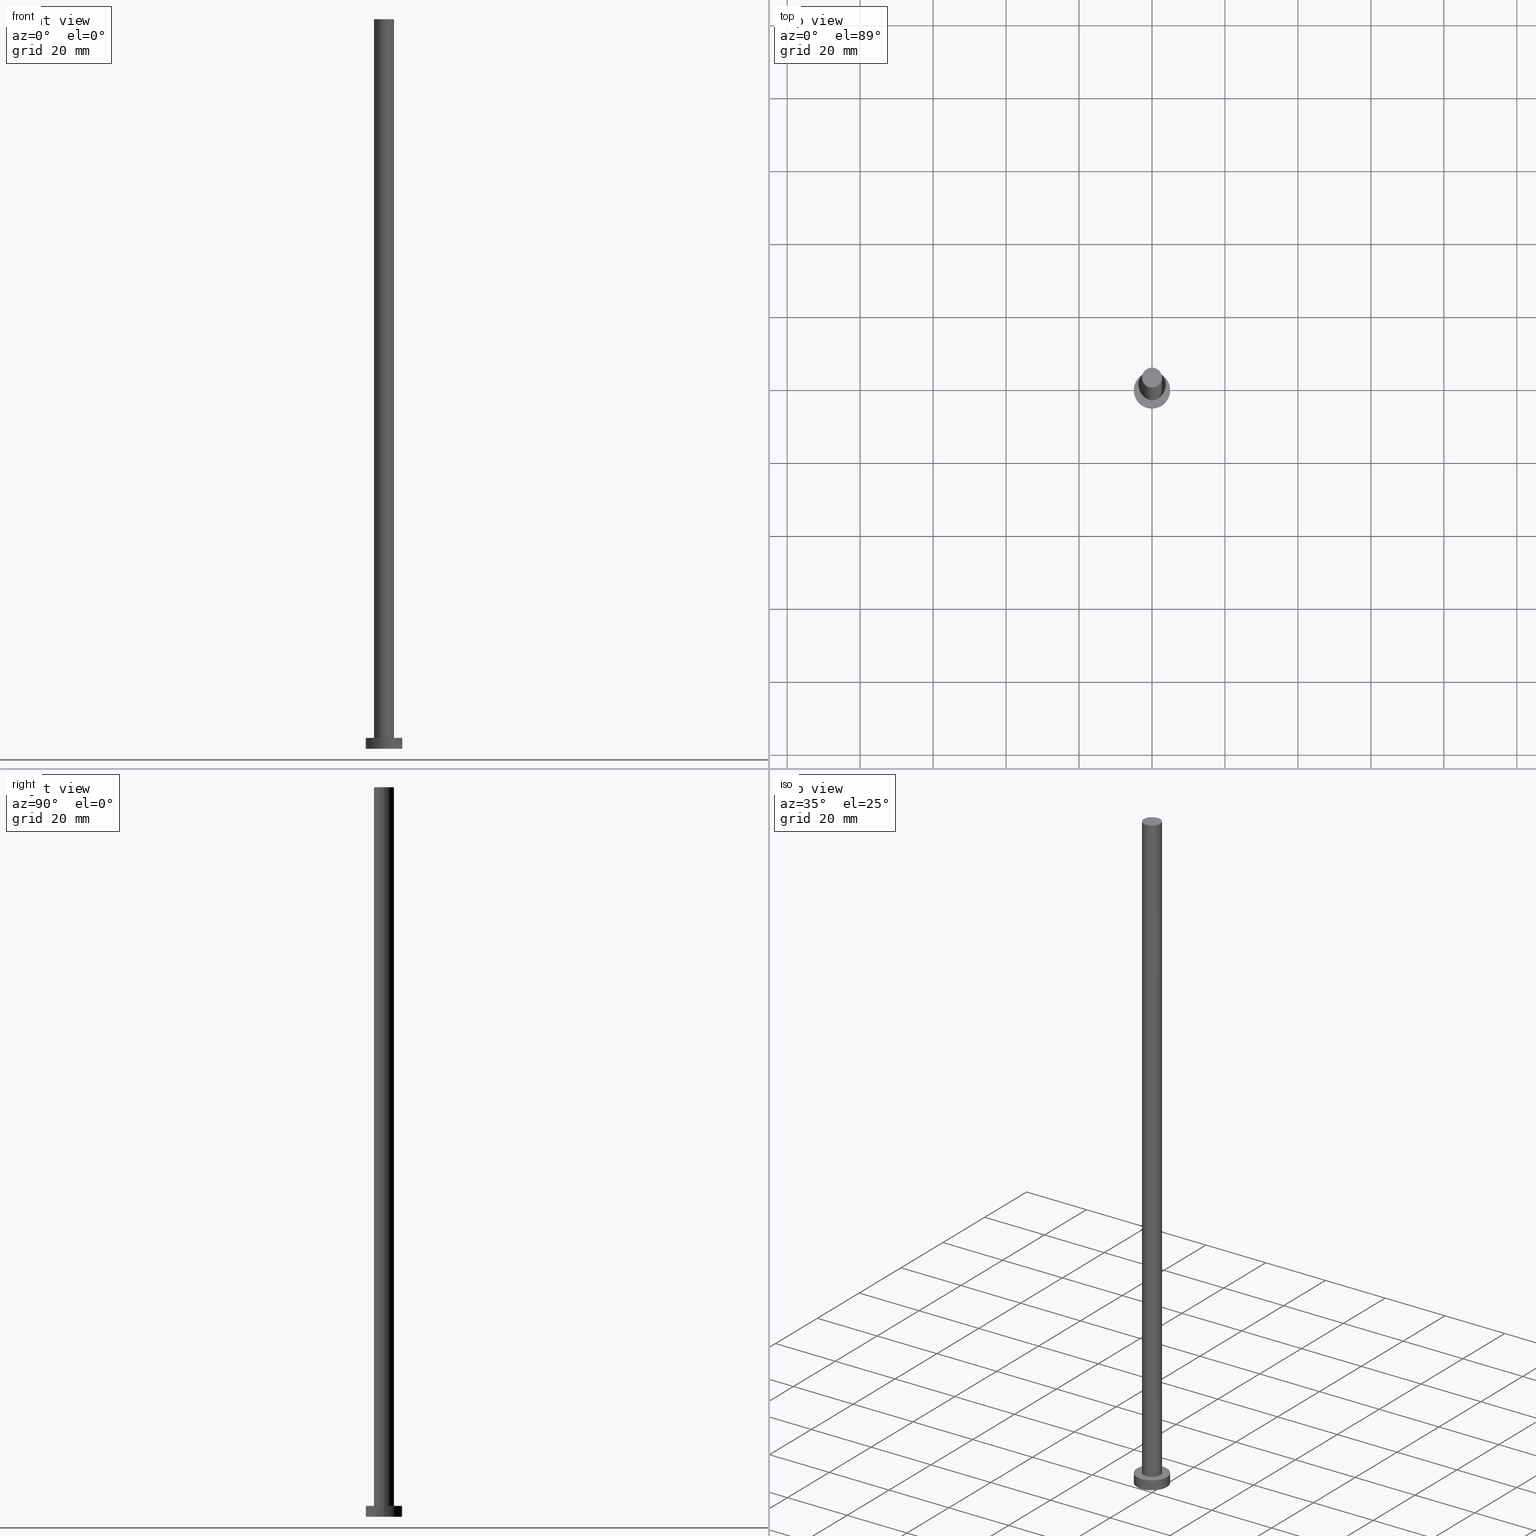
[diagram: canonical four-view strip — front | top / right | iso, engineering-drawing reading convention]
A machine part, canonical four-view strip (front | top / right | iso — engineering-drawing reading convention). The complete STEP part file that produces these views, byte-faithful:
ISO-10303-21;
HEADER;
FILE_DESCRIPTION (( 'STEP AP203' ),
    '1' );
FILE_NAME ('e95f.STEP',
    '2023-02-12T11:42:06',
    ( '' ),
    ( '' ),
    'SwSTEP 2.0',
    'SolidWorks 2019',
    '' );
FILE_SCHEMA (( 'CONFIG_CONTROL_DESIGN' ));
ENDSEC;

DATA;
#1 = FACE_BOUND ( 'NONE', #196, .T. ) ;
#2 = DIRECTION ( 'NONE',  ( -1.000000000000000000, 0.000000000000000000, 0.000000000000000000 ) ) ;
#3 = CARTESIAN_POINT ( 'NONE',  ( 0.000000000000000000, 0.000000000000000000, 200.0000000000000000 ) ) ;
#4 =( LENGTH_UNIT ( ) NAMED_UNIT ( * ) SI_UNIT ( .MILLI., .METRE. ) );
#5 = DESIGN_CONTEXT ( 'detailed design', #233, 'design' ) ;
#6 = DIRECTION ( 'NONE',  ( 1.000000000000000000, 0.000000000000000000, 0.000000000000000000 ) ) ;
#7 = PERSON_AND_ORGANIZATION ( #57, #110 ) ;
#8 = ORIENTED_EDGE ( 'NONE', *, *, #102, .F. ) ;
#9 = CC_DESIGN_DATE_AND_TIME_ASSIGNMENT ( #54, #30, ( #99 ) ) ;
#10 = ORIENTED_EDGE ( 'NONE', *, *, #214, .F. ) ;
#11 = VERTEX_POINT ( 'NONE', #164 ) ;
#12 = APPROVAL_DATE_TIME ( #191, #88 ) ;
#13 = ORIENTED_EDGE ( 'NONE', *, *, #217, .T. ) ;
#14 = ADVANCED_FACE ( 'NONE', ( #124 ), #103, .F. ) ;
#15 = APPROVAL_PERSON_ORGANIZATION ( #229, #88, #117 ) ;
#16 = DIRECTION ( 'NONE',  ( -1.000000000000000000, 0.000000000000000000, 0.000000000000000000 ) ) ;
#17 = CARTESIAN_POINT ( 'NONE',  ( 5.000000000000000000, 6.123233995736766282E-16, 3.000000000000000000 ) ) ;
#18 = VECTOR ( 'NONE', #125, 1000.000000000000000 ) ;
#19 = DIRECTION ( 'NONE',  ( 0.000000000000000000, 0.000000000000000000, 1.000000000000000000 ) ) ;
#20 = DIRECTION ( 'NONE',  ( 0.000000000000000000, 0.000000000000000000, 1.000000000000000000 ) ) ;
#21 = CYLINDRICAL_SURFACE ( 'NONE', #132, 5.000000000000000000 ) ;
#22 = ADVANCED_FACE ( 'NONE', ( #35 ), #195, .T. ) ;
#23 = APPROVAL_PERSON_ORGANIZATION ( #131, #60, #238 ) ;
#24 = DIRECTION ( 'NONE',  ( 1.000000000000000000, 0.000000000000000000, 0.000000000000000000 ) ) ;
#25 = DIRECTION ( 'NONE',  ( -1.000000000000000000, 0.000000000000000000, 0.000000000000000000 ) ) ;
#26 = COORDINATED_UNIVERSAL_TIME_OFFSET ( 1, 0, .AHEAD. ) ;
#27 = PERSON_AND_ORGANIZATION_ROLE ( 'classification_officer' ) ;
#28 = AXIS2_PLACEMENT_3D ( 'NONE', #167, #111, #6 ) ;
#29 = PRODUCT_DEFINITION_FORMATION_WITH_SPECIFIED_SOURCE ( 'LIBOVOLN�', '', #87, .NOT_KNOWN. ) ;
#30 = DATE_TIME_ROLE ( 'classification_date' ) ;
#31 = VERTEX_POINT ( 'NONE', #250 ) ;
#32 = EDGE_CURVE ( 'NONE', #216, #58, #34, .T. ) ;
#33 = ORIENTED_EDGE ( 'NONE', *, *, #168, .T. ) ;
#34 = CIRCLE ( 'NONE', #174, 5.000000000000000000 ) ;
#35 = FACE_OUTER_BOUND ( 'NONE', #95, .T. ) ;
#36 = ORIENTED_EDGE ( 'NONE', *, *, #102, .T. ) ;
#37 = VERTEX_POINT ( 'NONE', #178 ) ;
#38 = CLOSED_SHELL ( 'NONE', ( #179, #22, #147, #121, #14, #56, #96 ) ) ;
#39 = CARTESIAN_POINT ( 'NONE',  ( 0.000000000000000000, 0.000000000000000000, 3.000000000000000000 ) ) ;
#40 = CARTESIAN_POINT ( 'NONE',  ( -5.000000000000000000, 0.000000000000000000, 3.000000000000000000 ) ) ;
#41 =( NAMED_UNIT ( * ) SI_UNIT ( $, .STERADIAN. ) SOLID_ANGLE_UNIT ( ) );
#42 = CARTESIAN_POINT ( 'NONE',  ( 0.000000000000000000, 0.000000000000000000, 3.000000000000000000 ) ) ;
#43 =( NAMED_UNIT ( * ) PLANE_ANGLE_UNIT ( ) SI_UNIT ( $, .RADIAN. ) );
#44 = EDGE_CURVE ( 'NONE', #158, #37, #236, .T. ) ;
#45 = MECHANICAL_CONTEXT ( 'NONE', #219, 'mechanical' ) ;
#46 = CARTESIAN_POINT ( 'NONE',  ( 5.000000000000000000, 6.123233995736766282E-16, 0.000000000000000000 ) ) ;
#47 = CIRCLE ( 'NONE', #28, 5.000000000000000000 ) ;
#48 = CC_DESIGN_SECURITY_CLASSIFICATION ( #99, ( #29 ) ) ;
#49 = CALENDAR_DATE ( 2023, 12, 2 ) ;
#50 = ORIENTED_EDGE ( 'NONE', *, *, #154, .F. ) ;
#51 = CC_DESIGN_PERSON_AND_ORGANIZATION_ASSIGNMENT ( #73, #94, ( #244 ) ) ;
#52 = DATE_AND_TIME ( #189, #243 ) ;
#53 = SHAPE_DEFINITION_REPRESENTATION ( #139, #127 ) ;
#54 = DATE_AND_TIME ( #157, #249 ) ;
#55 = CC_DESIGN_APPROVAL ( #60, ( #244 ) ) ;
#56 = ADVANCED_FACE ( 'NONE', ( #142 ), #181, .T. ) ;
#57 = PERSON ( 'NEUR�EN�', 'NEUR�EN�', 'NEUR�EN�', ('NEUR�EN�'), ('NEUR�EN�'), ('NEUR�EN�') ) ;
#58 = VERTEX_POINT ( 'NONE', #17 ) ;
#59 = CARTESIAN_POINT ( 'NONE',  ( 5.000000000000000000, 6.123233995736766282E-16, 3.000000000000000000 ) ) ;
#60 = APPROVAL ( #107, 'NEUR�EN�' ) ;
#61 = ORIENTED_EDGE ( 'NONE', *, *, #32, .T. ) ;
#62 = ORIENTED_EDGE ( 'NONE', *, *, #66, .F. ) ;
#63 = ORIENTED_EDGE ( 'NONE', *, *, #44, .F. ) ;
#64 = AXIS2_PLACEMENT_3D ( 'NONE', #126, #20, #106 ) ;
#65 = CARTESIAN_POINT ( 'NONE',  ( 0.000000000000000000, 0.000000000000000000, 200.0000000000000000 ) ) ;
#66 = EDGE_CURVE ( 'NONE', #31, #11, #78, .T. ) ;
#67 = CIRCLE ( 'NONE', #91, 5.000000000000000000 ) ;
#68 = CARTESIAN_POINT ( 'NONE',  ( -5.000000000000000000, 0.000000000000000000, 0.000000000000000000 ) ) ;
#69 = EDGE_CURVE ( 'NONE', #216, #137, #101, .T. ) ;
#70 = AXIS2_PLACEMENT_3D ( 'NONE', #148, #183, #188 ) ;
#71 = DIRECTION ( 'NONE',  ( 1.000000000000000000, 0.000000000000000000, 0.000000000000000000 ) ) ;
#72 = APPROVAL_ROLE ( '' ) ;
#73 = PERSON_AND_ORGANIZATION ( #57, #110 ) ;
#74 = APPROVAL_DATE_TIME ( #172, #60 ) ;
#75 = ORIENTED_EDGE ( 'NONE', *, *, #168, .F. ) ;
#76 = AXIS2_PLACEMENT_3D ( 'NONE', #232, #100, #16 ) ;
#77 = AXIS2_PLACEMENT_3D ( 'NONE', #42, #186, #170 ) ;
#78 = LINE ( 'NONE', #253, #90 ) ;
#79 = DIRECTION ( 'NONE',  ( 1.000000000000000000, 0.000000000000000000, -0.000000000000000000 ) ) ;
#80 = EDGE_LOOP ( 'NONE', ( #61, #175 ) ) ;
#81 =( GEOMETRIC_REPRESENTATION_CONTEXT ( 3 ) GLOBAL_UNCERTAINTY_ASSIGNED_CONTEXT ( ( #242 ) ) GLOBAL_UNIT_ASSIGNED_CONTEXT ( ( #4, #43, #41 ) ) REPRESENTATION_CONTEXT ( 'NONE', 'WORKASPACE' ) );
#82 = DIRECTION ( 'NONE',  ( -0.000000000000000000, -0.000000000000000000, -1.000000000000000000 ) ) ;
#83 = MANIFOLD_SOLID_BREP ( 'P�idat vysunut�m3', #38 ) ;
#84 = ORIENTED_EDGE ( 'NONE', *, *, #246, .T. ) ;
#85 = CARTESIAN_POINT ( 'NONE',  ( 0.000000000000000000, 0.000000000000000000, 0.000000000000000000 ) ) ;
#86 = FACE_OUTER_BOUND ( 'NONE', #140, .T. ) ;
#87 = PRODUCT ( 'e95f', 'e95f', '', ( #45 ) ) ;
#88 = APPROVAL ( #226, 'NEUR�EN�' ) ;
#89 = DIRECTION ( 'NONE',  ( 1.000000000000000000, 0.000000000000000000, 0.000000000000000000 ) ) ;
#90 = VECTOR ( 'NONE', #162, 1000.000000000000000 ) ;
#91 = AXIS2_PLACEMENT_3D ( 'NONE', #85, #130, #71 ) ;
#92 = CARTESIAN_POINT ( 'NONE',  ( -2.750000000000000000, 0.000000000000000000, 200.0000000000000000 ) ) ;
#93 = COORDINATED_UNIVERSAL_TIME_OFFSET ( 1, 0, .AHEAD. ) ;
#94 = PERSON_AND_ORGANIZATION_ROLE ( 'creator' ) ;
#95 = EDGE_LOOP ( 'NONE', ( #10, #36, #84, #192 ) ) ;
#96 = ADVANCED_FACE ( 'NONE', ( #199 ), #163, .T. ) ;
#97 = PERSON_AND_ORGANIZATION_ROLE ( 'design_supplier' ) ;
#98 = ORIENTED_EDGE ( 'NONE', *, *, #154, .T. ) ;
#99 = SECURITY_CLASSIFICATION ( '', '', #134 ) ;
#100 = DIRECTION ( 'NONE',  ( -0.000000000000000000, -0.000000000000000000, -1.000000000000000000 ) ) ;
#101 = LINE ( 'NONE', #40, #118 ) ;
#102 = EDGE_CURVE ( 'NONE', #58, #122, #230, .T. ) ;
#103 = PLANE ( 'NONE',  #208 ) ;
#104 = ORIENTED_EDGE ( 'NONE', *, *, #114, .F. ) ;
#105 = LOCAL_TIME ( 12, 42, 6.000000000000000000, #119 ) ;
#106 = DIRECTION ( 'NONE',  ( 1.000000000000000000, 0.000000000000000000, 0.000000000000000000 ) ) ;
#107 = APPROVAL_STATUS ( 'not_yet_approved' ) ;
#108 = CARTESIAN_POINT ( 'NONE',  ( 0.000000000000000000, 0.000000000000000000, 0.000000000000000000 ) ) ;
#109 = CC_DESIGN_PERSON_AND_ORGANIZATION_ASSIGNMENT ( #171, #27, ( #99 ) ) ;
#110 = ORGANIZATION ( 'NEUR�EN�', 'NEUR�EN�', '' ) ;
#111 = DIRECTION ( 'NONE',  ( 0.000000000000000000, 0.000000000000000000, 1.000000000000000000 ) ) ;
#112 = PERSON_AND_ORGANIZATION ( #57, #110 ) ;
#113 = AXIS2_PLACEMENT_3D ( 'NONE', #108, #187, #89 ) ;
#114 = EDGE_CURVE ( 'NONE', #158, #31, #184, .T. ) ;
#115 = CALENDAR_DATE ( 2023, 12, 2 ) ;
#116 = EDGE_LOOP ( 'NONE', ( #190, #145, #212, #63 ) ) ;
#117 = APPROVAL_ROLE ( '' ) ;
#118 = VECTOR ( 'NONE', #82, 1000.000000000000000 ) ;
#119 = COORDINATED_UNIVERSAL_TIME_OFFSET ( 1, 0, .AHEAD. ) ;
#120 = EDGE_LOOP ( 'NONE', ( #50, #159 ) ) ;
#121 = ADVANCED_FACE ( 'NONE', ( #1, #138 ), #210, .T. ) ;
#122 = VERTEX_POINT ( 'NONE', #46 ) ;
#123 = CARTESIAN_POINT ( 'NONE',  ( 0.000000000000000000, 0.000000000000000000, 0.000000000000000000 ) ) ;
#124 = FACE_OUTER_BOUND ( 'NONE', #120, .T. ) ;
#125 = DIRECTION ( 'NONE',  ( -0.000000000000000000, -0.000000000000000000, -1.000000000000000000 ) ) ;
#126 = CARTESIAN_POINT ( 'NONE',  ( 0.000000000000000000, 0.000000000000000000, 200.0000000000000000 ) ) ;
#127 = ADVANCED_BREP_SHAPE_REPRESENTATION ( 'e95f', ( #83, #113 ), #81 ) ;
#128 = CARTESIAN_POINT ( 'NONE',  ( 0.000000000000000000, 0.000000000000000000, 200.0000000000000000 ) ) ;
#129 = DIRECTION ( 'NONE',  ( 1.000000000000000000, 0.000000000000000000, -0.000000000000000000 ) ) ;
#130 = DIRECTION ( 'NONE',  ( 0.000000000000000000, 0.000000000000000000, 1.000000000000000000 ) ) ;
#131 = PERSON_AND_ORGANIZATION ( #57, #110 ) ;
#132 = AXIS2_PLACEMENT_3D ( 'NONE', #146, #166, #2 ) ;
#133 = CIRCLE ( 'NONE', #161, 2.750000000000000000 ) ;
#134 = SECURITY_CLASSIFICATION_LEVEL ( 'unclassified' ) ;
#135 = ORIENTED_EDGE ( 'NONE', *, *, #69, .T. ) ;
#136 = PERSON_AND_ORGANIZATION ( #57, #110 ) ;
#137 = VERTEX_POINT ( 'NONE', #68 ) ;
#138 = FACE_OUTER_BOUND ( 'NONE', #80, .T. ) ;
#139 = PRODUCT_DEFINITION_SHAPE ( 'NONE', 'NONE',  #244 ) ;
#140 = EDGE_LOOP ( 'NONE', ( #8, #197, #135, #98 ) ) ;
#141 = EDGE_CURVE ( 'NONE', #11, #37, #206, .T. ) ;
#142 = FACE_OUTER_BOUND ( 'NONE', #228, .T. ) ;
#143 = ORIENTED_EDGE ( 'NONE', *, *, #141, .F. ) ;
#144 = APPROVAL_PERSON_ORGANIZATION ( #136, #204, #72 ) ;
#145 = ORIENTED_EDGE ( 'NONE', *, *, #66, .T. ) ;
#146 = CARTESIAN_POINT ( 'NONE',  ( 0.000000000000000000, 0.000000000000000000, 3.000000000000000000 ) ) ;
#147 = ADVANCED_FACE ( 'NONE', ( #86 ), #21, .T. ) ;
#148 = CARTESIAN_POINT ( 'NONE',  ( 0.000000000000000000, 0.000000000000000000, 3.000000000000000000 ) ) ;
#149 = AXIS2_PLACEMENT_3D ( 'NONE', #182, #251, #79 ) ;
#150 = CARTESIAN_POINT ( 'NONE',  ( -5.000000000000000000, 0.000000000000000000, 3.000000000000000000 ) ) ;
#151 = CIRCLE ( 'NONE', #77, 2.750000000000000000 ) ;
#152 = DIRECTION ( 'NONE',  ( -0.000000000000000000, -0.000000000000000000, -1.000000000000000000 ) ) ;
#153 = PERSON_AND_ORGANIZATION_ROLE ( 'design_owner' ) ;
#154 = EDGE_CURVE ( 'NONE', #137, #122, #47, .T. ) ;
#155 = DATE_TIME_ROLE ( 'creation_date' ) ;
#156 = APPROVAL_DATE_TIME ( #52, #204 ) ;
#157 = CALENDAR_DATE ( 2023, 12, 2 ) ;
#158 = VERTEX_POINT ( 'NONE', #92 ) ;
#159 = ORIENTED_EDGE ( 'NONE', *, *, #246, .F. ) ;
#160 = ORIENTED_EDGE ( 'NONE', *, *, #44, .T. ) ;
#161 = AXIS2_PLACEMENT_3D ( 'NONE', #3, #241, #205 ) ;
#162 = DIRECTION ( 'NONE',  ( -0.000000000000000000, -0.000000000000000000, -1.000000000000000000 ) ) ;
#163 = PLANE ( 'NONE',  #149 ) ;
#164 = CARTESIAN_POINT ( 'NONE',  ( 2.750000000000000000, 3.367778697655221012E-16, 3.000000000000000000 ) ) ;
#165 = CC_DESIGN_APPROVAL ( #204, ( #99 ) ) ;
#166 = DIRECTION ( 'NONE',  ( -0.000000000000000000, -0.000000000000000000, -1.000000000000000000 ) ) ;
#167 = CARTESIAN_POINT ( 'NONE',  ( 0.000000000000000000, 0.000000000000000000, 0.000000000000000000 ) ) ;
#168 = EDGE_CURVE ( 'NONE', #37, #11, #151, .T. ) ;
#169 = AXIS2_PLACEMENT_3D ( 'NONE', #177, #185, #129 ) ;
#170 = DIRECTION ( 'NONE',  ( 1.000000000000000000, 0.000000000000000000, 0.000000000000000000 ) ) ;
#171 = PERSON_AND_ORGANIZATION ( #57, #110 ) ;
#172 = DATE_AND_TIME ( #245, #215 ) ;
#173 = PERSON_AND_ORGANIZATION ( #57, #110 ) ;
#174 = AXIS2_PLACEMENT_3D ( 'NONE', #39, #19, #180 ) ;
#175 = ORIENTED_EDGE ( 'NONE', *, *, #214, .T. ) ;
#176 = CIRCLE ( 'NONE', #225, 5.000000000000000000 ) ;
#177 = CARTESIAN_POINT ( 'NONE',  ( 0.000000000000000000, 0.000000000000000000, 3.000000000000000000 ) ) ;
#178 = CARTESIAN_POINT ( 'NONE',  ( -2.750000000000000000, 0.000000000000000000, 3.000000000000000000 ) ) ;
#179 = ADVANCED_FACE ( 'NONE', ( #240 ), #220, .T. ) ;
#180 = DIRECTION ( 'NONE',  ( 1.000000000000000000, 0.000000000000000000, 0.000000000000000000 ) ) ;
#181 = CYLINDRICAL_SURFACE ( 'NONE', #252, 2.750000000000000000 ) ;
#182 = CARTESIAN_POINT ( 'NONE',  ( 0.000000000000000000, 0.000000000000000000, 200.0000000000000000 ) ) ;
#183 = DIRECTION ( 'NONE',  ( 0.000000000000000000, 0.000000000000000000, 1.000000000000000000 ) ) ;
#184 = CIRCLE ( 'NONE', #64, 2.750000000000000000 ) ;
#185 = DIRECTION ( 'NONE',  ( 0.000000000000000000, 0.000000000000000000, 1.000000000000000000 ) ) ;
#186 = DIRECTION ( 'NONE',  ( 0.000000000000000000, 0.000000000000000000, 1.000000000000000000 ) ) ;
#187 = DIRECTION ( 'NONE',  ( 0.000000000000000000, 0.000000000000000000, 1.000000000000000000 ) ) ;
#188 = DIRECTION ( 'NONE',  ( 1.000000000000000000, 0.000000000000000000, 0.000000000000000000 ) ) ;
#189 = CALENDAR_DATE ( 2023, 12, 2 ) ;
#190 = ORIENTED_EDGE ( 'NONE', *, *, #217, .F. ) ;
#191 = DATE_AND_TIME ( #49, #105 ) ;
#192 = ORIENTED_EDGE ( 'NONE', *, *, #69, .F. ) ;
#193 = EDGE_LOOP ( 'NONE', ( #209, #13 ) ) ;
#194 = CC_DESIGN_PERSON_AND_ORGANIZATION_ASSIGNMENT ( #7, #97, ( #29 ) ) ;
#195 = CYLINDRICAL_SURFACE ( 'NONE', #76, 5.000000000000000000 ) ;
#196 = EDGE_LOOP ( 'NONE', ( #75, #143 ) ) ;
#197 = ORIENTED_EDGE ( 'NONE', *, *, #32, .F. ) ;
#198 = VECTOR ( 'NONE', #235, 1000.000000000000000 ) ;
#199 = FACE_OUTER_BOUND ( 'NONE', #193, .T. ) ;
#200 = PRODUCT_RELATED_PRODUCT_CATEGORY ( 'detail', '', ( #87 ) ) ;
#201 = CARTESIAN_POINT ( 'NONE',  ( -2.750000000000000000, 0.000000000000000000, 200.0000000000000000 ) ) ;
#202 = LOCAL_TIME ( 12, 42, 6.000000000000000000, #224 ) ;
#203 = DIRECTION ( 'NONE',  ( 0.000000000000000000, 0.000000000000000000, 1.000000000000000000 ) ) ;
#204 = APPROVAL ( #207, 'NEUR�EN�' ) ;
#205 = DIRECTION ( 'NONE',  ( 1.000000000000000000, 0.000000000000000000, 0.000000000000000000 ) ) ;
#206 = CIRCLE ( 'NONE', #70, 2.750000000000000000 ) ;
#207 = APPROVAL_STATUS ( 'not_yet_approved' ) ;
#208 = AXIS2_PLACEMENT_3D ( 'NONE', #123, #234, #213 ) ;
#209 = ORIENTED_EDGE ( 'NONE', *, *, #114, .T. ) ;
#210 = PLANE ( 'NONE',  #169 ) ;
#211 = DIRECTION ( 'NONE',  ( -1.000000000000000000, 0.000000000000000000, 0.000000000000000000 ) ) ;
#212 = ORIENTED_EDGE ( 'NONE', *, *, #141, .T. ) ;
#213 = DIRECTION ( 'NONE',  ( 1.000000000000000000, 0.000000000000000000, -0.000000000000000000 ) ) ;
#214 = EDGE_CURVE ( 'NONE', #58, #216, #176, .T. ) ;
#215 = LOCAL_TIME ( 12, 42, 6.000000000000000000, #26 ) ;
#216 = VERTEX_POINT ( 'NONE', #150 ) ;
#217 = EDGE_CURVE ( 'NONE', #31, #158, #133, .T. ) ;
#218 = CARTESIAN_POINT ( 'NONE',  ( 0.000000000000000000, 0.000000000000000000, 3.000000000000000000 ) ) ;
#219 = APPLICATION_CONTEXT ( 'configuration controlled 3d designs of mechanical parts and assemblies' ) ;
#220 = CYLINDRICAL_SURFACE ( 'NONE', #237, 2.750000000000000000 ) ;
#221 = APPLICATION_PROTOCOL_DEFINITION ( 'international standard', 'config_control_design', 1994, #219 ) ;
#222 = APPLICATION_PROTOCOL_DEFINITION ( 'international standard', 'config_control_design', 1994, #233 ) ;
#223 = CC_DESIGN_PERSON_AND_ORGANIZATION_ASSIGNMENT ( #112, #153, ( #87 ) ) ;
#224 = COORDINATED_UNIVERSAL_TIME_OFFSET ( 1, 0, .AHEAD. ) ;
#225 = AXIS2_PLACEMENT_3D ( 'NONE', #218, #203, #24 ) ;
#226 = APPROVAL_STATUS ( 'not_yet_approved' ) ;
#227 = COORDINATED_UNIVERSAL_TIME_OFFSET ( 1, 0, .AHEAD. ) ;
#228 = EDGE_LOOP ( 'NONE', ( #62, #104, #160, #33 ) ) ;
#229 = PERSON_AND_ORGANIZATION ( #57, #110 ) ;
#230 = LINE ( 'NONE', #59, #198 ) ;
#231 = CC_DESIGN_DATE_AND_TIME_ASSIGNMENT ( #247, #155, ( #244 ) ) ;
#232 = CARTESIAN_POINT ( 'NONE',  ( 0.000000000000000000, 0.000000000000000000, 3.000000000000000000 ) ) ;
#233 = APPLICATION_CONTEXT ( 'configuration controlled 3d designs of mechanical parts and assemblies' ) ;
#234 = DIRECTION ( 'NONE',  ( 0.000000000000000000, 0.000000000000000000, 1.000000000000000000 ) ) ;
#235 = DIRECTION ( 'NONE',  ( -0.000000000000000000, -0.000000000000000000, -1.000000000000000000 ) ) ;
#236 = LINE ( 'NONE', #201, #18 ) ;
#237 = AXIS2_PLACEMENT_3D ( 'NONE', #128, #152, #25 ) ;
#238 = APPROVAL_ROLE ( '' ) ;
#239 = CC_DESIGN_PERSON_AND_ORGANIZATION_ASSIGNMENT ( #173, #248, ( #29 ) ) ;
#240 = FACE_OUTER_BOUND ( 'NONE', #116, .T. ) ;
#241 = DIRECTION ( 'NONE',  ( 0.000000000000000000, 0.000000000000000000, 1.000000000000000000 ) ) ;
#242 = UNCERTAINTY_MEASURE_WITH_UNIT (LENGTH_MEASURE( 1.000000000000000082E-05 ), #4, 'distance_accuracy_value', 'NONE');
#243 = LOCAL_TIME ( 12, 42, 6.000000000000000000, #93 ) ;
#244 = PRODUCT_DEFINITION ( 'NEZN�M�', '', #29, #5 ) ;
#245 = CALENDAR_DATE ( 2023, 12, 2 ) ;
#246 = EDGE_CURVE ( 'NONE', #122, #137, #67, .T. ) ;
#247 = DATE_AND_TIME ( #115, #202 ) ;
#248 = PERSON_AND_ORGANIZATION_ROLE ( 'creator' ) ;
#249 = LOCAL_TIME ( 12, 42, 6.000000000000000000, #227 ) ;
#250 = CARTESIAN_POINT ( 'NONE',  ( 2.750000000000000000, 3.367778697655221012E-16, 200.0000000000000000 ) ) ;
#251 = DIRECTION ( 'NONE',  ( 0.000000000000000000, 0.000000000000000000, 1.000000000000000000 ) ) ;
#252 = AXIS2_PLACEMENT_3D ( 'NONE', #65, #255, #211 ) ;
#253 = CARTESIAN_POINT ( 'NONE',  ( 2.750000000000000000, 3.367778697655221012E-16, 200.0000000000000000 ) ) ;
#254 = CC_DESIGN_APPROVAL ( #88, ( #29 ) ) ;
#255 = DIRECTION ( 'NONE',  ( -0.000000000000000000, -0.000000000000000000, -1.000000000000000000 ) ) ;
ENDSEC;
END-ISO-10303-21;
